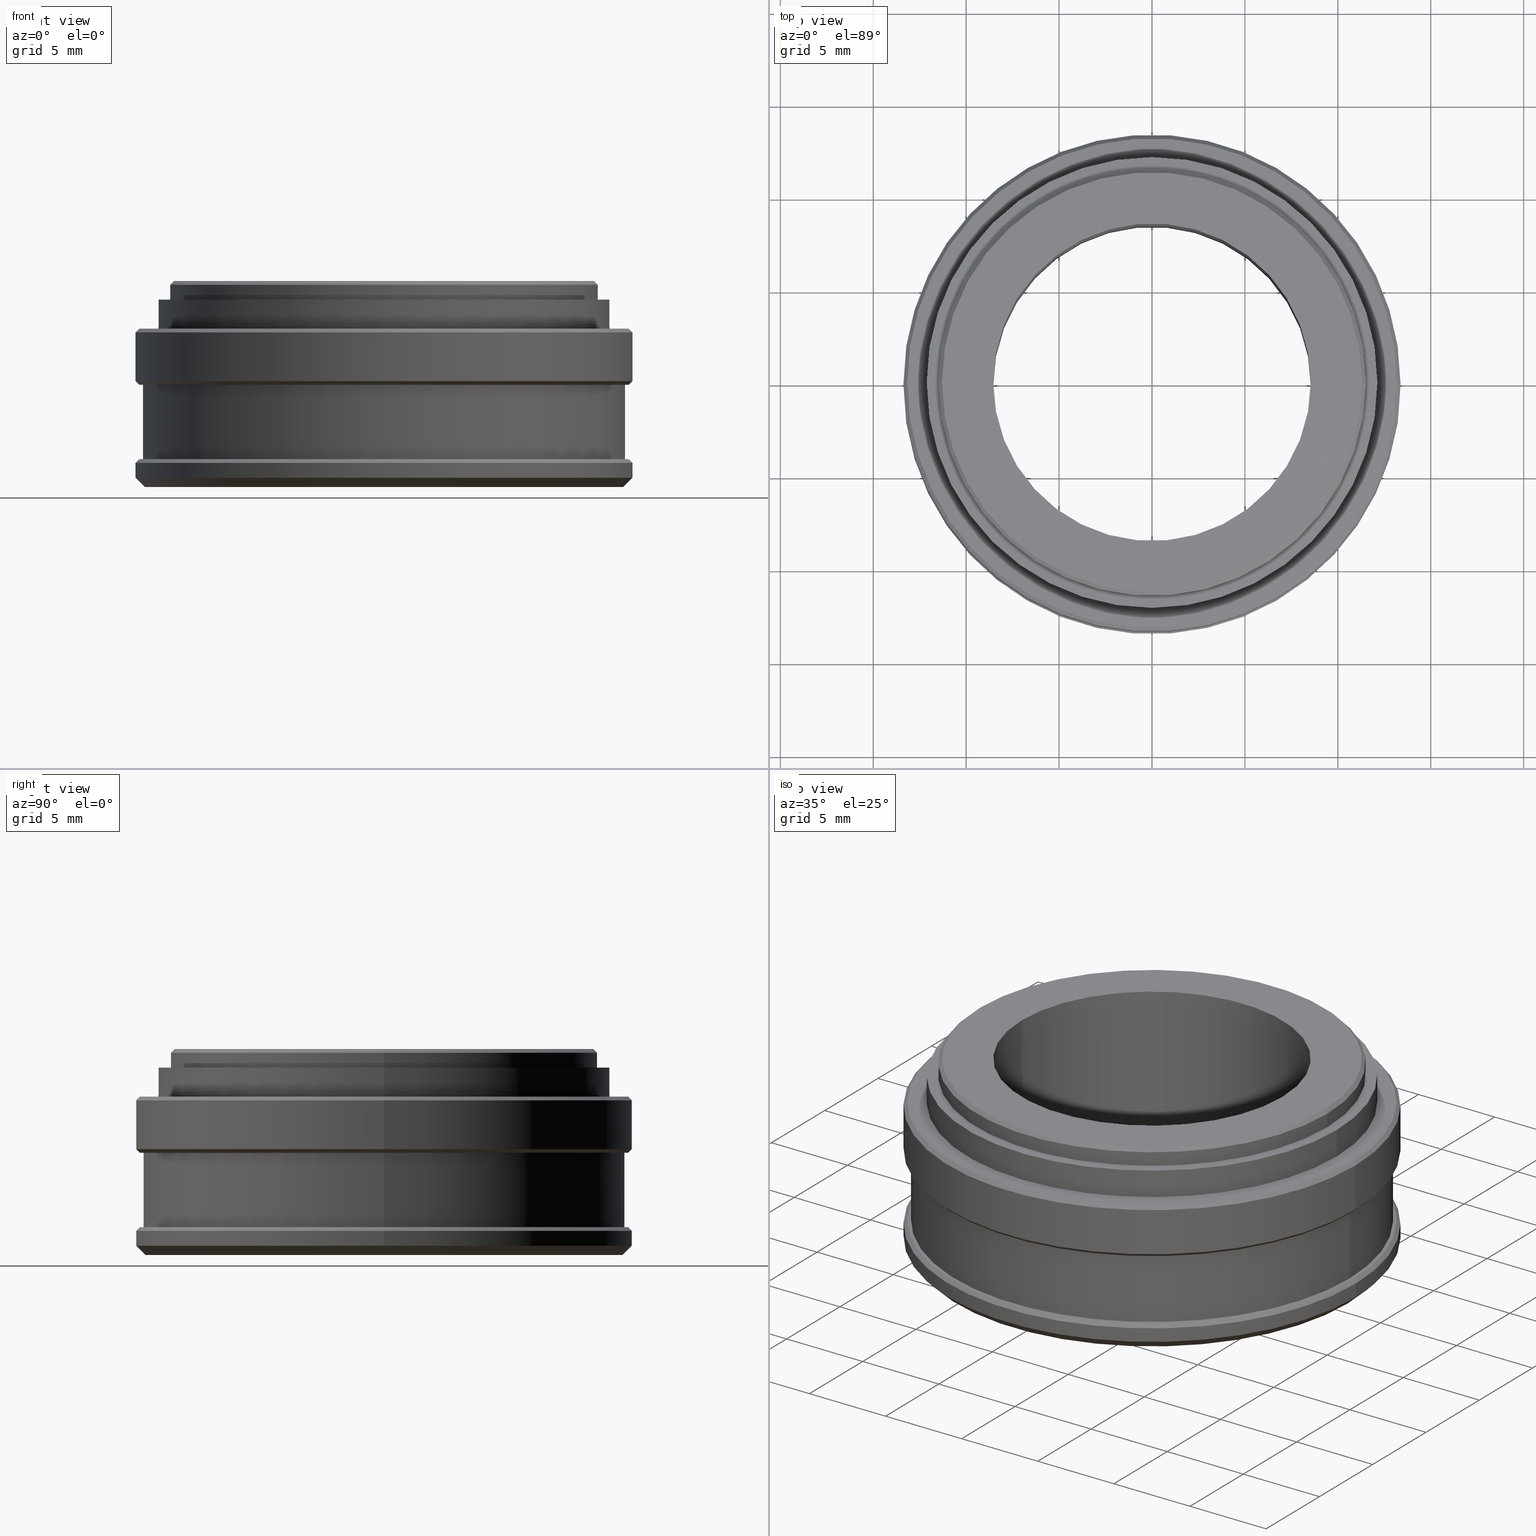
[diagram: canonical four-view strip — front | top / right | iso, engineering-drawing reading convention]
A machine part, canonical four-view strip (front | top / right | iso — engineering-drawing reading convention). The complete STEP part file that produces these views, byte-faithful:
ISO-10303-21;
HEADER;
FILE_DESCRIPTION (( 'STEP AP203' ),
    '1' );
FILE_NAME ('66105.STEP',
    '2018-03-31T08:20:15',
    ( 'User' ),
    ( 'china' ),
    'SwSTEP 2.0',
    'SolidWorks 2015',
    '' );
FILE_SCHEMA (( 'CONFIG_CONTROL_DESIGN' ));
ENDSEC;

DATA;
#1 = VERTEX_POINT ( 'NONE', #37 ) ;
#2 = VECTOR ( 'NONE', #607, 1000.000000000000000 ) ;
#3 = ORIENTED_EDGE ( 'NONE', *, *, #290, .T. ) ;
#4 = ORIENTED_EDGE ( 'NONE', *, *, #796, .F. ) ;
#5 = FACE_OUTER_BOUND ( 'NONE', #645, .T. ) ;
#6 = ORIENTED_EDGE ( 'NONE', *, *, #243, .T. ) ;
#7 = DIRECTION ( 'NONE',  ( 1.000000000000000000, 0.0000000000000000000, -0.0000000000000000000 ) ) ;
#8 = VERTEX_POINT ( 'NONE', #452 ) ;
#9 = VECTOR ( 'NONE', #205, 1000.000000000000100 ) ;
#10 = CONICAL_SURFACE ( 'NONE', #115, 13.17000000000001900, 0.7853981633974526100 ) ;
#11 = ORIENTED_EDGE ( 'NONE', *, *, #230, .T. ) ;
#12 = VERTEX_POINT ( 'NONE', #38 ) ;
#13 = VERTEX_POINT ( 'NONE', #32 ) ;
#14 = DATE_AND_TIME ( #395, #381 ) ;
#15 = VECTOR ( 'NONE', #293, 1000.000000000000000 ) ;
#16 = CIRCLE ( 'NONE', #150, 12.86999999999999700 ) ;
#17 = ORIENTED_EDGE ( 'NONE', *, *, #422, .F. ) ;
#18 = CIRCLE ( 'NONE', #200, 13.36999999999999900 ) ;
#19 = EDGE_LOOP ( 'NONE', ( #690, #776 ) ) ;
#20 = ORIENTED_EDGE ( 'NONE', *, *, #229, .F. ) ;
#21 = ORIENTED_EDGE ( 'NONE', *, *, #247, .T. ) ;
#22 = VERTEX_POINT ( 'NONE', #180 ) ;
#23 = EDGE_CURVE ( 'NONE', #13, #555, #472, .T. ) ;
#24 = CIRCLE ( 'NONE', #462, 11.50000000000000000 ) ;
#25 = FACE_OUTER_BOUND ( 'NONE', #208, .T. ) ;
#26 = PERSON_AND_ORGANIZATION_ROLE ( 'design_owner' ) ;
#27 = ORIENTED_EDGE ( 'NONE', *, *, #315, .F. ) ;
#28 = APPLICATION_CONTEXT ( 'configuration controlled 3d designs of mechanical parts and assemblies' ) ;
#29 = CC_DESIGN_SECURITY_CLASSIFICATION ( #56, ( #64 ) ) ;
#30 = APPLICATION_PROTOCOL_DEFINITION ( 'international standard', 'config_control_design', 1994, #28 ) ;
#31 = APPROVAL_STATUS ( 'not_yet_approved' ) ;
#32 = CARTESIAN_POINT ( 'NONE',  ( 12.97000000000000200, 1.588366898494117400E-015, 5.500000000000000000 ) ) ;
#33 = ORIENTED_EDGE ( 'NONE', *, *, #658, .F. ) ;
#34 = DESIGN_CONTEXT ( 'detailed design', #28, 'design' ) ;
#35 = APPROVAL_ROLE ( '' ) ;
#36 = PRODUCT_RELATED_PRODUCT_CATEGORY ( 'detail', '', ( #314 ) ) ;
#37 = CARTESIAN_POINT ( 'NONE',  ( 8.543975016016954500, 1.046335165536011900E-015, 11.08400000000000000 ) ) ;
#38 = CARTESIAN_POINT ( 'NONE',  ( 13.17000000000001900, 1.625106302468538600E-015, 8.519999999999999600 ) ) ;
#39 = CC_DESIGN_APPROVAL ( #49, ( #56 ) ) ;
#40 = PERSON_AND_ORGANIZATION_ROLE ( 'creator' ) ;
#41 = CC_DESIGN_DATE_AND_TIME_ASSIGNMENT ( #780, #69, ( #56 ) ) ;
#42 = DIRECTION ( 'NONE',  ( -1.000000000000000000, 0.0000000000000000000, 0.0000000000000000000 ) ) ;
#43 = CIRCLE ( 'NONE', #474, 8.543975016016954500 ) ;
#44 = DATE_TIME_ROLE ( 'creation_date' ) ;
#45 = APPROVAL_STATUS ( 'not_yet_approved' ) ;
#46 = ADVANCED_FACE ( 'NONE', ( #618 ), #619, .T. ) ;
#47 = APPROVAL_ROLE ( '' ) ;
#48 = COORDINATED_UNIVERSAL_TIME_OFFSET ( 8, 0, .AHEAD. ) ;
#49 = APPROVAL ( #67, 'δָ��' ) ;
#50 = CIRCLE ( 'NONE', #529, 11.30000000000000400 ) ;
#51 = PERSON_AND_ORGANIZATION_ROLE ( 'creator' ) ;
#52 = CC_DESIGN_PERSON_AND_ORGANIZATION_ASSIGNMENT ( #154, #71, ( #56 ) ) ;
#53 = ORIENTED_EDGE ( 'NONE', *, *, #262, .F. ) ;
#54 = CC_DESIGN_PERSON_AND_ORGANIZATION_ASSIGNMENT ( #419, #74, ( #64 ) ) ;
#55 = ADVANCED_FACE ( 'NONE', ( #723, #25 ), #209, .T. ) ;
#56 = SECURITY_CLASSIFICATION ( '', '', #73 ) ;
#57 = ORIENTED_EDGE ( 'NONE', *, *, #301, .F. ) ;
#58 = CC_DESIGN_PERSON_AND_ORGANIZATION_ASSIGNMENT ( #469, #51, ( #64 ) ) ;
#59 = EDGE_CURVE ( 'NONE', #22, #1, #581, .T. ) ;
#60 = CYLINDRICAL_SURFACE ( 'NONE', #360, 11.50000000000000000 ) ;
#61 = APPROVAL ( #45, 'δָ��' ) ;
#62 = LINE ( 'NONE', #556, #446 ) ;
#63 = CC_DESIGN_APPROVAL ( #61, ( #64 ) ) ;
#64 = PRODUCT_DEFINITION_FORMATION_WITH_SPECIFIED_SOURCE ( '�κ�', '', #314, .NOT_KNOWN. ) ;
#65 = EDGE_LOOP ( 'NONE', ( #513, #3, #57, #538 ) ) ;
#66 = APPROVAL_ROLE ( '' ) ;
#67 = APPROVAL_STATUS ( 'not_yet_approved' ) ;
#68 = EDGE_CURVE ( 'NONE', #12, #108, #317, .T. ) ;
#69 = DATE_TIME_ROLE ( 'classification_date' ) ;
#70 = CONICAL_SURFACE ( 'NONE', #131, 13.36999999999999900, 0.7853981633974500600 ) ;
#71 = PERSON_AND_ORGANIZATION_ROLE ( 'classification_officer' ) ;
#72 = AXIS2_PLACEMENT_3D ( 'NONE', #806, #801, #785 ) ;
#73 = SECURITY_CLASSIFICATION_LEVEL ( 'unclassified' ) ;
#74 = PERSON_AND_ORGANIZATION_ROLE ( 'design_supplier' ) ;
#75 = CC_DESIGN_PERSON_AND_ORGANIZATION_ASSIGNMENT ( #84, #40, ( #83 ) ) ;
#76 = ORIENTED_EDGE ( 'NONE', *, *, #304, .F. ) ;
#77 = CC_DESIGN_DATE_AND_TIME_ASSIGNMENT ( #616, #44, ( #83 ) ) ;
#78 = EDGE_CURVE ( 'NONE', #435, #104, #202, .T. ) ;
#79 = CC_DESIGN_APPROVAL ( #87, ( #83 ) ) ;
#80 = CARTESIAN_POINT ( 'NONE',  ( 0.0000000000000000000, 0.0000000000000000000, 8.519999999999999600 ) ) ;
#81 = DIRECTION ( 'NONE',  ( 0.0000000000000000000, 0.0000000000000000000, 1.000000000000000000 ) ) ;
#82 = DIRECTION ( 'NONE',  ( 1.000000000000000000, 0.0000000000000000000, 0.0000000000000000000 ) ) ;
#83 = PRODUCT_DEFINITION ( 'δ֪', '', #64, #34 ) ;
#84 = PERSON_AND_ORGANIZATION ( #570, #668 ) ;
#85 = DIRECTION ( 'NONE',  ( -1.000000000000000000, 0.0000000000000000000, 0.0000000000000000000 ) ) ;
#86 = LINE ( 'NONE', #592, #569 ) ;
#87 = APPROVAL ( #31, 'δָ��' ) ;
#88 = CARTESIAN_POINT ( 'NONE',  ( 0.0000000000000000000, 0.0000000000000000000, 5.500000000000000000 ) ) ;
#89 = APPROVAL_PERSON_ORGANIZATION ( #426, #61, #47 ) ;
#90 = CARTESIAN_POINT ( 'NONE',  ( 13.17000000000000200, 1.625106302468537800E-015, 1.500000000000000000 ) ) ;
#91 = PLANE ( 'NONE',  #128 ) ;
#92 = CC_DESIGN_PERSON_AND_ORGANIZATION_ASSIGNMENT ( #693, #26, ( #314 ) ) ;
#93 = CARTESIAN_POINT ( 'NONE',  ( 11.30000000000000400, 1.383850883036509700E-015, 11.08400000000000000 ) ) ;
#94 = CARTESIAN_POINT ( 'NONE',  ( -13.36999999999999900, 0.0000000000000000000, 0.5000000000000004400 ) ) ;
#95 = CARTESIAN_POINT ( 'NONE',  ( 0.0000000000000000000, 0.0000000000000000000, 1.500000000000000000 ) ) ;
#96 = DIRECTION ( 'NONE',  ( 0.0000000000000000000, 0.0000000000000000000, 1.000000000000000000 ) ) ;
#97 = DIRECTION ( 'NONE',  ( 1.000000000000000000, 0.0000000000000000000, 0.0000000000000000000 ) ) ;
#98 = DIRECTION ( 'NONE',  ( 0.0000000000000000000, 0.0000000000000000000, 1.000000000000000000 ) ) ;
#99 = FACE_OUTER_BOUND ( 'NONE', #332, .T. ) ;
#100 = DIRECTION ( 'NONE',  ( 1.000000000000000000, 0.0000000000000000000, 0.0000000000000000000 ) ) ;
#101 = DIRECTION ( 'NONE',  ( 1.000000000000000000, 0.0000000000000000000, -0.0000000000000000000 ) ) ;
#102 = AXIS2_PLACEMENT_3D ( 'NONE', #444, #443, #455 ) ;
#103 = CARTESIAN_POINT ( 'NONE',  ( 0.0000000000000000000, 0.0000000000000000000, 8.519999999999999600 ) ) ;
#104 = VERTEX_POINT ( 'NONE', #411 ) ;
#105 = DIRECTION ( 'NONE',  ( -0.0000000000000000000, -0.0000000000000000000, -1.000000000000000000 ) ) ;
#106 =( GEOMETRIC_REPRESENTATION_CONTEXT ( 3 ) GLOBAL_UNCERTAINTY_ASSIGNED_CONTEXT ( ( #739 ) ) GLOBAL_UNIT_ASSIGNED_CONTEXT ( ( #438, #451, #799 ) ) REPRESENTATION_CONTEXT ( 'NONE', 'WORKASPACE' ) );
#107 = AXIS2_PLACEMENT_3D ( 'NONE', #396, #398, #393 ) ;
#108 = VERTEX_POINT ( 'NONE', #283 ) ;
#109 = AXIS2_PLACEMENT_3D ( 'NONE', #437, #441, #436 ) ;
#110 = EDGE_LOOP ( 'NONE', ( #196, #466, #164, #242 ) ) ;
#111 = CIRCLE ( 'NONE', #144, 13.17000000000001900 ) ;
#112 = AXIS2_PLACEMENT_3D ( 'NONE', #430, #433, #392 ) ;
#113 = AXIS2_PLACEMENT_3D ( 'NONE', #400, #402, #403 ) ;
#114 = AXIS2_PLACEMENT_3D ( 'NONE', #382, #577, #384 ) ;
#115 = AXIS2_PLACEMENT_3D ( 'NONE', #389, #386, #385 ) ;
#116 = AXIS2_PLACEMENT_3D ( 'NONE', #525, #565, #568 ) ;
#117 = CIRCLE ( 'NONE', #485, 13.36999999999999900 ) ;
#118 = AXIS2_PLACEMENT_3D ( 'NONE', #559, #571, #575 ) ;
#119 = FACE_OUTER_BOUND ( 'NONE', #110, .T. ) ;
#120 = AXIS2_PLACEMENT_3D ( 'NONE', #562, #563, #564 ) ;
#121 = ORIENTED_EDGE ( 'NONE', *, *, #420, .F. ) ;
#122 = ADVANCED_FACE ( 'NONE', ( #763, #204 ), #159, .T. ) ;
#123 = AXIS2_PLACEMENT_3D ( 'NONE', #508, #501, #498 ) ;
#124 = AXIS2_PLACEMENT_3D ( 'NONE', #519, #512, #517 ) ;
#125 = AXIS2_PLACEMENT_3D ( 'NONE', #103, #185, #85 ) ;
#126 = APPROVAL_DATE_TIME ( #14, #87 ) ;
#127 = APPROVAL_DATE_TIME ( #323, #61 ) ;
#128 = AXIS2_PLACEMENT_3D ( 'NONE', #88, #98, #101 ) ;
#129 = ADVANCED_FACE ( 'NONE', ( #415 ), #211, .T. ) ;
#130 = EDGE_CURVE ( 'NONE', #729, #435, #521, .T. ) ;
#131 = AXIS2_PLACEMENT_3D ( 'NONE', #520, #428, #518 ) ;
#132 = ORIENTED_EDGE ( 'NONE', *, *, #663, .F. ) ;
#133 = LOCAL_TIME ( 16, 20, 15.00000000000000000, #256 ) ;
#134 = AXIS2_PLACEMENT_3D ( 'NONE', #448, #434, #397 ) ;
#135 = CALENDAR_DATE ( 2018, 31, 3 ) ;
#136 = AXIS2_PLACEMENT_3D ( 'NONE', #95, #96, #97 ) ;
#137 = ORIENTED_EDGE ( 'NONE', *, *, #195, .T. ) ;
#138 = EDGE_LOOP ( 'NONE', ( #250, #296, #794, #139 ) ) ;
#139 = ORIENTED_EDGE ( 'NONE', *, *, #269, .F. ) ;
#140 = AXIS2_PLACEMENT_3D ( 'NONE', #183, #188, #182 ) ;
#141 = ORIENTED_EDGE ( 'NONE', *, *, #68, .T. ) ;
#142 = AXIS2_PLACEMENT_3D ( 'NONE', #178, #176, #179 ) ;
#143 = AXIS2_PLACEMENT_3D ( 'NONE', #80, #81, #82 ) ;
#144 = AXIS2_PLACEMENT_3D ( 'NONE', #165, #166, #167 ) ;
#145 = ORIENTED_EDGE ( 'NONE', *, *, #507, .T. ) ;
#146 = FACE_OUTER_BOUND ( 'NONE', #503, .T. ) ;
#147 = CONICAL_SURFACE ( 'NONE', #118, 13.36999999999999900, 0.7853981633974500600 ) ;
#148 = VERTEX_POINT ( 'NONE', #280 ) ;
#149 = AXIS2_PLACEMENT_3D ( 'NONE', #771, #811, #809 ) ;
#150 = AXIS2_PLACEMENT_3D ( 'NONE', #510, #105, #100 ) ;
#151 = CYLINDRICAL_SURFACE ( 'NONE', #524, 12.12400000000000200 ) ;
#152 = ORIENTED_EDGE ( 'NONE', *, *, #266, .T. ) ;
#153 = EDGE_LOOP ( 'NONE', ( #666, #141, #551, #457 ) ) ;
#154 = PERSON_AND_ORGANIZATION ( #570, #668 ) ;
#155 = AXIS2_PLACEMENT_3D ( 'NONE', #721, #719, #718 ) ;
#156 = CIRCLE ( 'NONE', #488, 13.16999999999997700 ) ;
#157 = AXIS2_PLACEMENT_3D ( 'NONE', #598, #578, #605 ) ;
#158 = LINE ( 'NONE', #697, #267 ) ;
#159 = PLANE ( 'NONE',  #421 ) ;
#160 = AXIS2_PLACEMENT_3D ( 'NONE', #318, #191, #414 ) ;
#161 = EDGE_LOOP ( 'NONE', ( #669, #664, #724, #121 ) ) ;
#162 = CIRCLE ( 'NONE', #467, 13.36999999999999900 ) ;
#163 = DIRECTION ( 'NONE',  ( -1.000000000000000000, 0.0000000000000000000, 0.0000000000000000000 ) ) ;
#164 = ORIENTED_EDGE ( 'NONE', *, *, #286, .T. ) ;
#165 = CARTESIAN_POINT ( 'NONE',  ( 0.0000000000000000000, 0.0000000000000000000, 8.519999999999999600 ) ) ;
#166 = DIRECTION ( 'NONE',  ( 0.0000000000000000000, 0.0000000000000000000, 1.000000000000000000 ) ) ;
#167 = DIRECTION ( 'NONE',  ( 1.000000000000000000, 0.0000000000000000000, 0.0000000000000000000 ) ) ;
#168 = VERTEX_POINT ( 'NONE', #363 ) ;
#169 = CONICAL_SURFACE ( 'NONE', #114, 11.30000000000000400, 0.7853981633974569400 ) ;
#170 = DIRECTION ( 'NONE',  ( -0.0000000000000000000, -0.0000000000000000000, -1.000000000000000000 ) ) ;
#171 = AXIS2_PLACEMENT_3D ( 'NONE', #735, #483, #463 ) ;
#172 = FACE_BOUND ( 'NONE', #173, .T. ) ;
#173 = EDGE_LOOP ( 'NONE', ( #792, #502 ) ) ;
#174 = VECTOR ( 'NONE', #330, 1000.000000000000100 ) ;
#175 = AXIS2_PLACEMENT_3D ( 'NONE', #303, #295, #405 ) ;
#176 = DIRECTION ( 'NONE',  ( 0.0000000000000000000, 0.0000000000000000000, -1.000000000000000000 ) ) ;
#177 = ADVANCED_FACE ( 'NONE', ( #302 ), #311, .T. ) ;
#178 = CARTESIAN_POINT ( 'NONE',  ( 0.0000000000000000000, 0.0000000000000000000, 11.08400000000000000 ) ) ;
#179 = DIRECTION ( 'NONE',  ( -1.000000000000000000, 0.0000000000000000000, 0.0000000000000000000 ) ) ;
#180 = CARTESIAN_POINT ( 'NONE',  ( -8.543975016016954500, 0.0000000000000000000, 11.08400000000000000 ) ) ;
#181 = CIRCLE ( 'NONE', #478, 12.12400000000000200 ) ;
#182 = DIRECTION ( 'NONE',  ( -1.000000000000000000, 0.0000000000000000000, 0.0000000000000000000 ) ) ;
#183 = CARTESIAN_POINT ( 'NONE',  ( 0.0000000000000000000, 0.0000000000000000000, 11.08400000000000000 ) ) ;
#184 = ADVANCED_FACE ( 'NONE', ( #5 ), #769, .T. ) ;
#185 = DIRECTION ( 'NONE',  ( -0.0000000000000000000, -0.0000000000000000000, -1.000000000000000000 ) ) ;
#186 = LINE ( 'NONE', #539, #174 ) ;
#187 = FACE_OUTER_BOUND ( 'NONE', #368, .T. ) ;
#188 = DIRECTION ( 'NONE',  ( -0.0000000000000000000, -0.0000000000000000000, -1.000000000000000000 ) ) ;
#189 = DIRECTION ( 'NONE',  ( 0.7071067811865536800, 8.659560562355008000E-017, -0.7071067811865414700 ) ) ;
#190 = AXIS2_PLACEMENT_3D ( 'NONE', #226, #536, #534 ) ;
#191 = DIRECTION ( 'NONE',  ( 0.0000000000000000000, 0.0000000000000000000, 1.000000000000000000 ) ) ;
#192 = EDGE_LOOP ( 'NONE', ( #33, #53 ) ) ;
#193 = ORIENTED_EDGE ( 'NONE', *, *, #241, .T. ) ;
#194 = VERTEX_POINT ( 'NONE', #326 ) ;
#195 = EDGE_CURVE ( 'NONE', #649, #566, #18, .T. ) ;
#196 = ORIENTED_EDGE ( 'NONE', *, *, #266, .F. ) ;
#197 = FACE_OUTER_BOUND ( 'NONE', #373, .T. ) ;
#198 = ORIENTED_EDGE ( 'NONE', *, *, #299, .T. ) ;
#199 = EDGE_LOOP ( 'NONE', ( #557, #308, #324, #265 ) ) ;
#200 = AXIS2_PLACEMENT_3D ( 'NONE', #494, #300, #257 ) ;
#201 = DIRECTION ( 'NONE',  ( -0.0000000000000000000, -0.0000000000000000000, -1.000000000000000000 ) ) ;
#202 = CIRCLE ( 'NONE', #338, 11.50000000000000000 ) ;
#203 = AXIS2_PLACEMENT_3D ( 'NONE', #573, #567, #42 ) ;
#204 = FACE_BOUND ( 'NONE', #192, .T. ) ;
#205 = DIRECTION ( 'NONE',  ( 0.7071067811865506800, 8.659560562354969800E-017, -0.7071067811865443500 ) ) ;
#206 = AXIS2_PLACEMENT_3D ( 'NONE', #588, #589, #590 ) ;
#207 = EDGE_LOOP ( 'NONE', ( #20, #306, #375, #27 ) ) ;
#208 = EDGE_LOOP ( 'NONE', ( #352, #793 ) ) ;
#209 = PLANE ( 'NONE',  #558 ) ;
#210 = ORIENTED_EDGE ( 'NONE', *, *, #253, .F. ) ;
#211 = CYLINDRICAL_SURFACE ( 'NONE', #175, 12.12400000000000200 ) ;
#212 = ADVANCED_FACE ( 'NONE', ( #344 ), #672, .F. ) ;
#213 = CONICAL_SURFACE ( 'NONE', #112, 13.36999999999999900, 0.7853981633974482800 ) ;
#214 = ORIENTED_EDGE ( 'NONE', *, *, #255, .T. ) ;
#215 = CIRCLE ( 'NONE', #190, 8.543975016016954500 ) ;
#216 = ADVANCED_FACE ( 'NONE', ( #119 ), #60, .T. ) ;
#217 = ORIENTED_EDGE ( 'NONE', *, *, #279, .F. ) ;
#218 = DIRECTION ( 'NONE',  ( 0.0000000000000000000, 0.0000000000000000000, -1.000000000000000000 ) ) ;
#219 = CIRCLE ( 'NONE', #134, 12.97000000000000200 ) ;
#220 = LINE ( 'NONE', #709, #260 ) ;
#221 = FACE_OUTER_BOUND ( 'NONE', #416, .T. ) ;
#222 = VERTEX_POINT ( 'NONE', #535 ) ;
#223 = ORIENTED_EDGE ( 'NONE', *, *, #195, .F. ) ;
#224 = VECTOR ( 'NONE', #608, 1000.000000000000000 ) ;
#225 = CONICAL_SURFACE ( 'NONE', #109, 13.36999999999999900, 0.7853981633974482800 ) ;
#226 = CARTESIAN_POINT ( 'NONE',  ( 0.0000000000000000000, 0.0000000000000000000, 0.0000000000000000000 ) ) ;
#227 = ORIENTED_EDGE ( 'NONE', *, *, #281, .F. ) ;
#228 = DIRECTION ( 'NONE',  ( -0.0000000000000000000, -0.0000000000000000000, -1.000000000000000000 ) ) ;
#229 = EDGE_CURVE ( 'NONE', #643, #623, #736, .T. ) ;
#230 = EDGE_CURVE ( 'NONE', #698, #795, #215, .T. ) ;
#231 = EDGE_CURVE ( 'NONE', #505, #566, #812, .T. ) ;
#232 = ORIENTED_EDGE ( 'NONE', *, *, #658, .T. ) ;
#233 = CIRCLE ( 'NONE', #475, 12.12400000000000200 ) ;
#234 = DIRECTION ( 'NONE',  ( 0.0000000000000000000, 0.0000000000000000000, 1.000000000000000000 ) ) ;
#235 = ORIENTED_EDGE ( 'NONE', *, *, #447, .F. ) ;
#236 = EDGE_LOOP ( 'NONE', ( #732, #214, #442, #516 ) ) ;
#237 = CIRCLE ( 'NONE', #143, 13.17000000000001900 ) ;
#238 = EDGE_CURVE ( 'NONE', #1, #698, #62, .T. ) ;
#239 = EDGE_CURVE ( 'NONE', #305, #194, #533, .T. ) ;
#240 = EDGE_CURVE ( 'NONE', #22, #795, #477, .T. ) ;
#241 = EDGE_CURVE ( 'NONE', #738, #222, #620, .T. ) ;
#242 = ORIENTED_EDGE ( 'NONE', *, *, #253, .T. ) ;
#243 = EDGE_CURVE ( 'NONE', #649, #540, #783, .T. ) ;
#244 = ORIENTED_EDGE ( 'NONE', *, *, #301, .T. ) ;
#245 = EDGE_CURVE ( 'NONE', #566, #649, #162, .T. ) ;
#246 = EDGE_LOOP ( 'NONE', ( #145, #591 ) ) ;
#247 = EDGE_CURVE ( 'NONE', #795, #698, #43, .T. ) ;
#248 = EDGE_CURVE ( 'NONE', #550, #628, #372, .T. ) ;
#249 = EDGE_CURVE ( 'NONE', #334, #649, #648, .T. ) ;
#250 = ORIENTED_EDGE ( 'NONE', *, *, #255, .F. ) ;
#251 = EDGE_LOOP ( 'NONE', ( #493, #17, #817, #132 ) ) ;
#252 = ORIENTED_EDGE ( 'NONE', *, *, #307, .F. ) ;
#253 = EDGE_CURVE ( 'NONE', #407, #781, #24, .T. ) ;
#254 = EDGE_CURVE ( 'NONE', #781, #407, #320, .T. ) ;
#255 = EDGE_CURVE ( 'NONE', #222, #628, #86, .T. ) ;
#256 = COORDINATED_UNIVERSAL_TIME_OFFSET ( 8, 0, .AHEAD. ) ;
#257 = DIRECTION ( 'NONE',  ( 1.000000000000000000, 0.0000000000000000000, 0.0000000000000000000 ) ) ;
#258 = FACE_OUTER_BOUND ( 'NONE', #199, .T. ) ;
#259 = DIRECTION ( 'NONE',  ( -0.0000000000000000000, -0.0000000000000000000, -1.000000000000000000 ) ) ;
#260 = VECTOR ( 'NONE', #748, 1000.000000000000000 ) ;
#261 = EDGE_LOOP ( 'NONE', ( #210, #760 ) ) ;
#262 = EDGE_CURVE ( 'NONE', #325, #168, #784, .T. ) ;
#263 = DIRECTION ( 'NONE',  ( -0.0000000000000000000, -0.0000000000000000000, -1.000000000000000000 ) ) ;
#264 = EDGE_CURVE ( 'NONE', #566, #194, #476, .T. ) ;
#265 = ORIENTED_EDGE ( 'NONE', *, *, #278, .F. ) ;
#266 = EDGE_CURVE ( 'NONE', #104, #781, #798, .T. ) ;
#267 = VECTOR ( 'NONE', #699, 1000.000000000000000 ) ;
#268 = CARTESIAN_POINT ( 'NONE',  ( 0.0000000000000000000, 0.0000000000000000000, 5.500000000000000000 ) ) ;
#269 = EDGE_CURVE ( 'NONE', #628, #550, #646, .T. ) ;
#270 = APPROVAL_PERSON_ORGANIZATION ( #406, #87, #35 ) ;
#271 = EDGE_CURVE ( 'NONE', #313, #148, #233, .T. ) ;
#272 = DIRECTION ( 'NONE',  ( -1.000000000000000000, 0.0000000000000000000, 0.0000000000000000000 ) ) ;
#273 = EDGE_CURVE ( 'NONE', #148, #313, #181, .T. ) ;
#274 = CARTESIAN_POINT ( 'NONE',  ( 0.0000000000000000000, 0.0000000000000000000, 1.500000000000000000 ) ) ;
#275 = EDGE_CURVE ( 'NONE', #729, #346, #797, .T. ) ;
#276 = EDGE_LOOP ( 'NONE', ( #321, #708, #6, #777 ) ) ;
#277 = DIRECTION ( 'NONE',  ( -0.0000000000000000000, -0.0000000000000000000, -1.000000000000000000 ) ) ;
#278 = EDGE_CURVE ( 'NONE', #108, #8, #117, .T. ) ;
#279 = EDGE_CURVE ( 'NONE', #104, #435, #349, .T. ) ;
#280 = CARTESIAN_POINT ( 'NONE',  ( -12.12400000000000200, 0.0000000000000000000, 8.519999999999999600 ) ) ;
#281 = EDGE_CURVE ( 'NONE', #555, #168, #657, .T. ) ;
#282 = ADVANCED_FACE ( 'NONE', ( #99 ), #634, .T. ) ;
#283 = CARTESIAN_POINT ( 'NONE',  ( 13.36999999999999900, 1.637352770460010800E-015, 8.320000000000021600 ) ) ;
#284 = ORIENTED_EDGE ( 'NONE', *, *, #273, .F. ) ;
#285 = CARTESIAN_POINT ( 'NONE',  ( -13.36999999999999900, 0.0000000000000000000, 8.519999999999999600 ) ) ;
#286 = EDGE_CURVE ( 'NONE', #435, #407, #731, .T. ) ;
#287 = CARTESIAN_POINT ( 'NONE',  ( 0.0000000000000000000, 0.0000000000000000000, 5.700000000000022400 ) ) ;
#288 = DIRECTION ( 'NONE',  ( -1.000000000000000000, 0.0000000000000000000, 0.0000000000000000000 ) ) ;
#289 = ADVANCED_FACE ( 'NONE', ( #146 ), #802, .T. ) ;
#290 = EDGE_CURVE ( 'NONE', #674, #540, #158, .T. ) ;
#291 = FACE_OUTER_BOUND ( 'NONE', #370, .T. ) ;
#292 = EDGE_CURVE ( 'NONE', #623, #643, #484, .T. ) ;
#293 = DIRECTION ( 'NONE',  ( -0.7071067811865536800, 0.0000000000000000000, -0.7071067811865414700 ) ) ;
#294 = ORIENTED_EDGE ( 'NONE', *, *, #427, .T. ) ;
#295 = DIRECTION ( 'NONE',  ( -0.0000000000000000000, -0.0000000000000000000, -1.000000000000000000 ) ) ;
#296 = ORIENTED_EDGE ( 'NONE', *, *, #241, .F. ) ;
#297 = CARTESIAN_POINT ( 'NONE',  ( 13.17000000000000200, 1.612859834477064300E-015, 1.500000000000000000 ) ) ;
#298 = MANIFOLD_SOLID_BREP ( '�г�-����1', #661 ) ;
#299 = EDGE_CURVE ( 'NONE', #222, #738, #156, .T. ) ;
#300 = DIRECTION ( 'NONE',  ( 0.0000000000000000000, 0.0000000000000000000, -1.000000000000000000 ) ) ;
#301 = EDGE_CURVE ( 'NONE', #194, #540, #531, .T. ) ;
#302 = FACE_OUTER_BOUND ( 'NONE', #153, .T. ) ;
#303 = CARTESIAN_POINT ( 'NONE',  ( 0.0000000000000000000, 0.0000000000000000000, 10.08400000000000000 ) ) ;
#304 = EDGE_CURVE ( 'NONE', #643, #313, #316, .T. ) ;
#305 = VERTEX_POINT ( 'NONE', #678 ) ;
#306 = ORIENTED_EDGE ( 'NONE', *, *, #304, .T. ) ;
#307 = EDGE_CURVE ( 'NONE', #1, #22, #700, .T. ) ;
#308 = ORIENTED_EDGE ( 'NONE', *, *, #458, .F. ) ;
#309 = ORIENTED_EDGE ( 'NONE', *, *, #240, .F. ) ;
#310 = ORIENTED_EDGE ( 'NONE', *, *, #269, .T. ) ;
#311 = CONICAL_SURFACE ( 'NONE', #665, 13.17000000000001900, 0.7853981633974526100 ) ;
#312 = FACE_OUTER_BOUND ( 'NONE', #717, .T. ) ;
#313 = VERTEX_POINT ( 'NONE', #679 ) ;
#314 = PRODUCT ( '66105', '66105', '', ( #456 ) ) ;
#315 = EDGE_CURVE ( 'NONE', #623, #148, #220, .T. ) ;
#316 = LINE ( 'NONE', #703, #388 ) ;
#317 = LINE ( 'NONE', #409, #9 ) ;
#318 = CARTESIAN_POINT ( 'NONE',  ( 0.0000000000000000000, 0.0000000000000000000, 11.08400000000000000 ) ) ;
#319 = CARTESIAN_POINT ( 'NONE',  ( 13.36999999999999900, 1.637352770460010800E-015, 8.519999999999999600 ) ) ;
#320 = CIRCLE ( 'NONE', #471, 11.50000000000000000 ) ;
#321 = ORIENTED_EDGE ( 'NONE', *, *, #264, .F. ) ;
#322 = CARTESIAN_POINT ( 'NONE',  ( 0.0000000000000000000, 0.0000000000000000000, 11.08400000000000000 ) ) ;
#323 = DATE_AND_TIME ( #135, #787 ) ;
#324 = ORIENTED_EDGE ( 'NONE', *, *, #410, .T. ) ;
#325 = VERTEX_POINT ( 'NONE', #749 ) ;
#326 = CARTESIAN_POINT ( 'NONE',  ( 13.36999999999999900, 1.637352770460011200E-015, 0.5000000000000004400 ) ) ;
#327 = EDGE_LOOP ( 'NONE', ( #336, #480 ) ) ;
#328 = VERTEX_POINT ( 'NONE', #774 ) ;
#329 = ORIENTED_EDGE ( 'NONE', *, *, #425, .F. ) ;
#330 = DIRECTION ( 'NONE',  ( -0.7071067811865506800, 0.0000000000000000000, -0.7071067811865443500 ) ) ;
#331 = VECTOR ( 'NONE', #814, 1000.000000000000000 ) ;
#332 = EDGE_LOOP ( 'NONE', ( #523, #401, #223, #653 ) ) ;
#333 = CIRCLE ( 'NONE', #136, 13.17000000000000200 ) ;
#334 = VERTEX_POINT ( 'NONE', #752 ) ;
#335 = EDGE_LOOP ( 'NONE', ( #377, #603, #819, #21 ) ) ;
#336 = ORIENTED_EDGE ( 'NONE', *, *, #275, .T. ) ;
#337 = CARTESIAN_POINT ( 'NONE',  ( 0.0000000000000000000, 0.0000000000000000000, 8.519999999999999600 ) ) ;
#338 = AXIS2_PLACEMENT_3D ( 'NONE', #612, #351, #404 ) ;
#339 = DIRECTION ( 'NONE',  ( 1.000000000000000000, 0.0000000000000000000, -0.0000000000000000000 ) ) ;
#340 = ADVANCED_FACE ( 'NONE', ( #722 ), #151, .T. ) ;
#341 = DIRECTION ( 'NONE',  ( -1.000000000000000000, 0.0000000000000000000, 0.0000000000000000000 ) ) ;
#342 = DIRECTION ( 'NONE',  ( -1.000000000000000000, 0.0000000000000000000, 0.0000000000000000000 ) ) ;
#343 = DIRECTION ( 'NONE',  ( -0.0000000000000000000, -0.0000000000000000000, -1.000000000000000000 ) ) ;
#344 = FACE_OUTER_BOUND ( 'NONE', #335, .T. ) ;
#345 = CONICAL_SURFACE ( 'NONE', #142, 11.30000000000000400, 0.7853981633974569400 ) ;
#346 = VERTEX_POINT ( 'NONE', #761 ) ;
#347 = ADVANCED_FACE ( 'NONE', ( #197 ), #755, .T. ) ;
#348 = VECTOR ( 'NONE', #189, 1000.000000000000000 ) ;
#349 = CIRCLE ( 'NONE', #486, 11.50000000000000000 ) ;
#350 = ORIENTED_EDGE ( 'NONE', *, *, #422, .T. ) ;
#351 = DIRECTION ( 'NONE',  ( 0.0000000000000000000, 0.0000000000000000000, -1.000000000000000000 ) ) ;
#352 = ORIENTED_EDGE ( 'NONE', *, *, #292, .T. ) ;
#353 = VECTOR ( 'NONE', #689, 1000.000000000000000 ) ;
#354 = CARTESIAN_POINT ( 'NONE',  ( 0.0000000000000000000, 0.0000000000000000000, 11.08400000000000000 ) ) ;
#355 = ORIENTED_EDGE ( 'NONE', *, *, #292, .F. ) ;
#356 = VECTOR ( 'NONE', #170, 1000.000000000000000 ) ;
#357 = FACE_OUTER_BOUND ( 'NONE', #553, .T. ) ;
#358 = CARTESIAN_POINT ( 'NONE',  ( 0.0000000000000000000, 0.0000000000000000000, 11.08400000000000000 ) ) ;
#359 = ORIENTED_EDGE ( 'NONE', *, *, #247, .F. ) ;
#360 = AXIS2_PLACEMENT_3D ( 'NONE', #322, #343, #341 ) ;
#361 = PRODUCT_DEFINITION_SHAPE ( 'NONE', 'NONE',  #83 ) ;
#362 = EDGE_LOOP ( 'NONE', ( #378, #734, #546, #574 ) ) ;
#363 = CARTESIAN_POINT ( 'NONE',  ( -12.97000000000000200, 0.0000000000000000000, 1.500000000000000000 ) ) ;
#364 = ORIENTED_EDGE ( 'NONE', *, *, #264, .T. ) ;
#365 = DIRECTION ( 'NONE',  ( -1.000000000000000000, 0.0000000000000000000, 0.0000000000000000000 ) ) ;
#366 = EDGE_LOOP ( 'NONE', ( #350, #294 ) ) ;
#367 = CARTESIAN_POINT ( 'NONE',  ( -11.30000000000000400, 0.0000000000000000000, 11.08400000000000000 ) ) ;
#368 = EDGE_LOOP ( 'NONE', ( #193, #198 ) ) ;
#369 = EDGE_CURVE ( 'NONE', #346, #729, #50, .T. ) ;
#370 = EDGE_LOOP ( 'NONE', ( #235, #704, #767, #310 ) ) ;
#371 = DIRECTION ( 'NONE',  ( 0.0000000000000000000, 0.0000000000000000000, -1.000000000000000000 ) ) ;
#372 = CIRCLE ( 'NONE', #470, 13.36999999999999900 ) ;
#373 = EDGE_LOOP ( 'NONE', ( #491, #542, #374, #431 ) ) ;
#374 = ORIENTED_EDGE ( 'NONE', *, *, #249, .T. ) ;
#375 = ORIENTED_EDGE ( 'NONE', *, *, #271, .T. ) ;
#376 = ORIENTED_EDGE ( 'NONE', *, *, #458, .T. ) ;
#377 = ORIENTED_EDGE ( 'NONE', *, *, #238, .F. ) ;
#378 = ORIENTED_EDGE ( 'NONE', *, *, #369, .F. ) ;
#379 = CARTESIAN_POINT ( 'NONE',  ( -11.30000000000000400, 0.0000000000000000000, 11.08400000000000000 ) ) ;
#380 = CARTESIAN_POINT ( 'NONE',  ( 8.543975016016954500, 1.046335165536011900E-015, 0.0000000000000000000 ) ) ;
#381 = LOCAL_TIME ( 16, 20, 15.00000000000000000, #449 ) ;
#382 = CARTESIAN_POINT ( 'NONE',  ( 0.0000000000000000000, 0.0000000000000000000, 11.08400000000000000 ) ) ;
#383 = ADVANCED_FACE ( 'NONE', ( #684, #775 ), #720, .F. ) ;
#384 = DIRECTION ( 'NONE',  ( -1.000000000000000000, 0.0000000000000000000, 0.0000000000000000000 ) ) ;
#385 = DIRECTION ( 'NONE',  ( -1.000000000000000000, 0.0000000000000000000, 0.0000000000000000000 ) ) ;
#386 = DIRECTION ( 'NONE',  ( 0.0000000000000000000, 0.0000000000000000000, -1.000000000000000000 ) ) ;
#387 = CARTESIAN_POINT ( 'NONE',  ( -8.543975016016954500, 0.0000000000000000000, 0.0000000000000000000 ) ) ;
#388 = VECTOR ( 'NONE', #705, 1000.000000000000000 ) ;
#389 = CARTESIAN_POINT ( 'NONE',  ( 0.0000000000000000000, 0.0000000000000000000, 8.519999999999999600 ) ) ;
#390 = ADVANCED_FACE ( 'NONE', ( #172, #726 ), #764, .T. ) ;
#391 = CARTESIAN_POINT ( 'NONE',  ( 11.50000000000000000, 1.408343819019456200E-015, 10.08400000000000000 ) ) ;
#392 = DIRECTION ( 'NONE',  ( 1.000000000000000000, 0.0000000000000000000, 0.0000000000000000000 ) ) ;
#393 = DIRECTION ( 'NONE',  ( -1.000000000000000000, 0.0000000000000000000, 0.0000000000000000000 ) ) ;
#394 = VECTOR ( 'NONE', #587, 1000.000000000000000 ) ;
#395 = CALENDAR_DATE ( 2018, 31, 3 ) ;
#396 = CARTESIAN_POINT ( 'NONE',  ( 0.0000000000000000000, 0.0000000000000000000, 1.500000000000000000 ) ) ;
#397 = DIRECTION ( 'NONE',  ( 1.000000000000000000, 0.0000000000000000000, 0.0000000000000000000 ) ) ;
#398 = DIRECTION ( 'NONE',  ( -0.0000000000000000000, -0.0000000000000000000, -1.000000000000000000 ) ) ;
#399 = CIRCLE ( 'NONE', #157, 13.17000000000000200 ) ;
#400 = CARTESIAN_POINT ( 'NONE',  ( 0.0000000000000000000, 0.0000000000000000000, 5.500000000000000000 ) ) ;
#401 = ORIENTED_EDGE ( 'NONE', *, *, #231, .T. ) ;
#402 = DIRECTION ( 'NONE',  ( 0.0000000000000000000, 0.0000000000000000000, 1.000000000000000000 ) ) ;
#403 = DIRECTION ( 'NONE',  ( 1.000000000000000000, 0.0000000000000000000, 0.0000000000000000000 ) ) ;
#404 = DIRECTION ( 'NONE',  ( 1.000000000000000000, 0.0000000000000000000, 0.0000000000000000000 ) ) ;
#405 = DIRECTION ( 'NONE',  ( -1.000000000000000000, 0.0000000000000000000, 0.0000000000000000000 ) ) ;
#406 = PERSON_AND_ORGANIZATION ( #570, #668 ) ;
#407 = VERTEX_POINT ( 'NONE', #408 ) ;
#408 = CARTESIAN_POINT ( 'NONE',  ( -11.50000000000000000, 0.0000000000000000000, 10.08400000000000000 ) ) ;
#409 = CARTESIAN_POINT ( 'NONE',  ( 13.17000000000001900, 1.612859834477066400E-015, 8.519999999999999600 ) ) ;
#410 = EDGE_CURVE ( 'NONE', #328, #8, #186, .T. ) ;
#411 = CARTESIAN_POINT ( 'NONE',  ( 11.50000000000000000, 1.408343819019456200E-015, 10.88400000000000700 ) ) ;
#412 = EDGE_CURVE ( 'NONE', #505, #334, #399, .T. ) ;
#413 = ORIENTED_EDGE ( 'NONE', *, *, #78, .T. ) ;
#414 = DIRECTION ( 'NONE',  ( 1.000000000000000000, 0.0000000000000000000, -0.0000000000000000000 ) ) ;
#415 = FACE_OUTER_BOUND ( 'NONE', #600, .T. ) ;
#416 = EDGE_LOOP ( 'NONE', ( #252, #815, #11, #309 ) ) ;
#417 = CYLINDRICAL_SURFACE ( 'NONE', #140, 8.543975016016954500 ) ;
#418 = EDGE_CURVE ( 'NONE', #8, #108, #670, .T. ) ;
#419 = PERSON_AND_ORGANIZATION ( #570, #668 ) ;
#420 = EDGE_CURVE ( 'NONE', #8, #628, #584, .T. ) ;
#421 = AXIS2_PLACEMENT_3D ( 'NONE', #274, #234, #339 ) ;
#422 = EDGE_CURVE ( 'NONE', #305, #674, #640, .T. ) ;
#423 = EDGE_LOOP ( 'NONE', ( #359, #696 ) ) ;
#424 = EDGE_CURVE ( 'NONE', #738, #550, #606, .T. ) ;
#425 = EDGE_CURVE ( 'NONE', #13, #325, #754, .T. ) ;
#426 = PERSON_AND_ORGANIZATION ( #570, #668 ) ;
#427 = EDGE_CURVE ( 'NONE', #674, #305, #16, .T. ) ;
#428 = DIRECTION ( 'NONE',  ( -0.0000000000000000000, -0.0000000000000000000, 1.000000000000000000 ) ) ;
#429 = CIRCLE ( 'NONE', #113, 12.97000000000000200 ) ;
#430 = CARTESIAN_POINT ( 'NONE',  ( 0.0000000000000000000, 0.0000000000000000000, 5.700000000000022400 ) ) ;
#431 = ORIENTED_EDGE ( 'NONE', *, *, #245, .F. ) ;
#432 = EDGE_CURVE ( 'NONE', #12, #328, #111, .T. ) ;
#433 = DIRECTION ( 'NONE',  ( -0.0000000000000000000, -0.0000000000000000000, 1.000000000000000000 ) ) ;
#434 = DIRECTION ( 'NONE',  ( 0.0000000000000000000, 0.0000000000000000000, 1.000000000000000000 ) ) ;
#435 = VERTEX_POINT ( 'NONE', #788 ) ;
#436 = DIRECTION ( 'NONE',  ( 1.000000000000000000, 0.0000000000000000000, 0.0000000000000000000 ) ) ;
#437 = CARTESIAN_POINT ( 'NONE',  ( 0.0000000000000000000, 0.0000000000000000000, 5.700000000000022400 ) ) ;
#438 =( LENGTH_UNIT ( ) NAMED_UNIT ( * ) SI_UNIT ( .MILLI., .METRE. ) );
#439 = ORIENTED_EDGE ( 'NONE', *, *, #425, .T. ) ;
#440 = EDGE_CURVE ( 'NONE', #346, #104, #701, .T. ) ;
#441 = DIRECTION ( 'NONE',  ( -0.0000000000000000000, -0.0000000000000000000, 1.000000000000000000 ) ) ;
#442 = ORIENTED_EDGE ( 'NONE', *, *, #248, .F. ) ;
#443 = DIRECTION ( 'NONE',  ( 0.0000000000000000000, 0.0000000000000000000, 1.000000000000000000 ) ) ;
#444 = CARTESIAN_POINT ( 'NONE',  ( 0.0000000000000000000, 0.0000000000000000000, 0.0000000000000000000 ) ) ;
#445 = AXIS2_PLACEMENT_3D ( 'NONE', #358, #259, #365 ) ;
#446 = VECTOR ( 'NONE', #263, 1000.000000000000000 ) ;
#447 = EDGE_CURVE ( 'NONE', #108, #550, #673, .T. ) ;
#448 = CARTESIAN_POINT ( 'NONE',  ( 0.0000000000000000000, 0.0000000000000000000, 1.500000000000000000 ) ) ;
#449 = COORDINATED_UNIVERSAL_TIME_OFFSET ( 8, 0, .AHEAD. ) ;
#450 = CARTESIAN_POINT ( 'NONE',  ( -12.86999999999999700, 1.606736600481327200E-015, 0.0000000000000000000 ) ) ;
#451 =( NAMED_UNIT ( * ) PLANE_ANGLE_UNIT ( ) SI_UNIT ( $, .RADIAN. ) );
#452 = CARTESIAN_POINT ( 'NONE',  ( -13.36999999999999900, 0.0000000000000000000, 8.320000000000021600 ) ) ;
#453 = APPLICATION_CONTEXT ( 'configuration controlled 3d designs of mechanical parts and assemblies' ) ;
#454 = ADVANCED_FACE ( 'NONE', ( #221 ), #417, .F. ) ;
#455 = DIRECTION ( 'NONE',  ( 1.000000000000000000, 0.0000000000000000000, 0.0000000000000000000 ) ) ;
#456 = MECHANICAL_CONTEXT ( 'NONE', #453, 'mechanical' ) ;
#457 = ORIENTED_EDGE ( 'NONE', *, *, #410, .F. ) ;
#458 = EDGE_CURVE ( 'NONE', #328, #12, #237, .T. ) ;
#459 = ADVANCED_FACE ( 'NONE', ( #357 ), #345, .T. ) ;
#460 = SHAPE_DEFINITION_REPRESENTATION ( #361, #756 ) ;
#461 = CYLINDRICAL_SURFACE ( 'NONE', #107, 13.36999999999999900 ) ;
#462 = AXIS2_PLACEMENT_3D ( 'NONE', #580, #609, #773 ) ;
#463 = DIRECTION ( 'NONE',  ( 1.000000000000000000, 0.0000000000000000000, -0.0000000000000000000 ) ) ;
#464 = LOCAL_TIME ( 16, 20, 15.00000000000000000, #48 ) ;
#465 = FACE_OUTER_BOUND ( 'NONE', #65, .T. ) ;
#466 = ORIENTED_EDGE ( 'NONE', *, *, #279, .T. ) ;
#467 = AXIS2_PLACEMENT_3D ( 'NONE', #593, #594, #595 ) ;
#468 = ORIENTED_EDGE ( 'NONE', *, *, #262, .T. ) ;
#469 = PERSON_AND_ORGANIZATION ( #570, #668 ) ;
#470 = AXIS2_PLACEMENT_3D ( 'NONE', #287, #601, #602 ) ;
#471 = AXIS2_PLACEMENT_3D ( 'NONE', #772, #659, #655 ) ;
#472 = CIRCLE ( 'NONE', #72, 12.97000000000000200 ) ;
#473 = AXIS2_PLACEMENT_3D ( 'NONE', #635, #636, #637 ) ;
#474 = AXIS2_PLACEMENT_3D ( 'NONE', #597, #579, #582 ) ;
#475 = AXIS2_PLACEMENT_3D ( 'NONE', #624, #629, #654 ) ;
#476 = LINE ( 'NONE', #633, #687 ) ;
#477 = LINE ( 'NONE', #622, #224 ) ;
#478 = AXIS2_PLACEMENT_3D ( 'NONE', #651, #652, #626 ) ;
#479 = FACE_OUTER_BOUND ( 'NONE', #161, .T. ) ;
#480 = ORIENTED_EDGE ( 'NONE', *, *, #369, .T. ) ;
#481 = DIRECTION ( 'NONE',  ( 1.000000000000000000, 0.0000000000000000000, 0.0000000000000000000 ) ) ;
#482 = AXIS2_PLACEMENT_3D ( 'NONE', #641, #642, #647 ) ;
#483 = DIRECTION ( 'NONE',  ( 0.0000000000000000000, 0.0000000000000000000, 1.000000000000000000 ) ) ;
#484 = CIRCLE ( 'NONE', #490, 12.12400000000000200 ) ;
#485 = AXIS2_PLACEMENT_3D ( 'NONE', #730, #715, #813 ) ;
#486 = AXIS2_PLACEMENT_3D ( 'NONE', #713, #683, #685 ) ;
#487 = AXIS2_PLACEMENT_3D ( 'NONE', #630, #625, #627 ) ;
#488 = AXIS2_PLACEMENT_3D ( 'NONE', #706, #770, #707 ) ;
#489 = CALENDAR_DATE ( 2018, 31, 3 ) ;
#490 = AXIS2_PLACEMENT_3D ( 'NONE', #675, #681, #710 ) ;
#491 = ORIENTED_EDGE ( 'NONE', *, *, #231, .F. ) ;
#492 = AXIS2_PLACEMENT_3D ( 'NONE', #532, #554, #548 ) ;
#493 = ORIENTED_EDGE ( 'NONE', *, *, #290, .F. ) ;
#494 = CARTESIAN_POINT ( 'NONE',  ( 0.0000000000000000000, 0.0000000000000000000, 1.300000000000002900 ) ) ;
#495 = AXIS2_PLACEMENT_3D ( 'NONE', #712, #686, #688 ) ;
#496 = ORIENTED_EDGE ( 'NONE', *, *, #271, .F. ) ;
#497 = VECTOR ( 'NONE', #549, 1000.000000000000000 ) ;
#498 = DIRECTION ( 'NONE',  ( -1.000000000000000000, 0.0000000000000000000, 0.0000000000000000000 ) ) ;
#499 = AXIS2_PLACEMENT_3D ( 'NONE', #702, #682, #677 ) ;
#500 = VECTOR ( 'NONE', #639, 1000.000000000000000 ) ;
#501 = DIRECTION ( 'NONE',  ( -0.0000000000000000000, -0.0000000000000000000, -1.000000000000000000 ) ) ;
#502 = ORIENTED_EDGE ( 'NONE', *, *, #307, .T. ) ;
#503 = EDGE_LOOP ( 'NONE', ( #611, #439, #468, #227 ) ) ;
#504 = AXIS2_PLACEMENT_3D ( 'NONE', #743, #744, #745 ) ;
#505 = VERTEX_POINT ( 'NONE', #90 ) ;
#506 = AXIS2_PLACEMENT_3D ( 'NONE', #694, #750, #692 ) ;
#507 = EDGE_CURVE ( 'NONE', #334, #505, #333, .T. ) ;
#508 = CARTESIAN_POINT ( 'NONE',  ( 0.0000000000000000000, 0.0000000000000000000, 8.519999999999999600 ) ) ;
#509 = CARTESIAN_POINT ( 'NONE',  ( -12.97000000000000200, 0.0000000000000000000, 5.500000000000000000 ) ) ;
#510 = CARTESIAN_POINT ( 'NONE',  ( 0.0000000000000000000, 0.0000000000000000000, 0.0000000000000000000 ) ) ;
#511 = AXIS2_PLACEMENT_3D ( 'NONE', #741, #762, #163 ) ;
#512 = DIRECTION ( 'NONE',  ( -0.0000000000000000000, -0.0000000000000000000, -1.000000000000000000 ) ) ;
#513 = ORIENTED_EDGE ( 'NONE', *, *, #427, .F. ) ;
#514 = CARTESIAN_POINT ( 'NONE',  ( 13.36999999999999900, 1.637352770460010800E-015, 5.700000000000022400 ) ) ;
#515 = CARTESIAN_POINT ( 'NONE',  ( 13.36999999999999900, 1.637352770460011200E-015, 1.300000000000002900 ) ) ;
#516 = ORIENTED_EDGE ( 'NONE', *, *, #424, .F. ) ;
#517 = DIRECTION ( 'NONE',  ( -1.000000000000000000, 0.0000000000000000000, 0.0000000000000000000 ) ) ;
#518 = DIRECTION ( 'NONE',  ( 1.000000000000000000, 0.0000000000000000000, 0.0000000000000000000 ) ) ;
#519 = CARTESIAN_POINT ( 'NONE',  ( 0.0000000000000000000, 0.0000000000000000000, 11.08400000000000000 ) ) ;
#520 = CARTESIAN_POINT ( 'NONE',  ( 0.0000000000000000000, 0.0000000000000000000, 0.5000000000000004400 ) ) ;
#521 = LINE ( 'NONE', #367, #15 ) ;
#522 = CARTESIAN_POINT ( 'NONE',  ( 12.12400000000000200, 1.484761779286251400E-015, 10.08400000000000000 ) ) ;
#523 = ORIENTED_EDGE ( 'NONE', *, *, #412, .F. ) ;
#524 = AXIS2_PLACEMENT_3D ( 'NONE', #753, #747, #757 ) ;
#525 = CARTESIAN_POINT ( 'NONE',  ( 0.0000000000000000000, 0.0000000000000000000, 8.519999999999999600 ) ) ;
#526 = CARTESIAN_POINT ( 'NONE',  ( -13.36999999999999900, 0.0000000000000000000, 1.300000000000002900 ) ) ;
#527 = EDGE_LOOP ( 'NONE', ( #137, #364, #244, #766 ) ) ;
#528 = CARTESIAN_POINT ( 'NONE',  ( -12.12400000000000200, 0.0000000000000000000, 10.08400000000000000 ) ) ;
#529 = AXIS2_PLACEMENT_3D ( 'NONE', #765, #733, #481 ) ;
#530 = CARTESIAN_POINT ( 'NONE',  ( -13.36999999999999900, 0.0000000000000000000, 5.700000000000022400 ) ) ;
#531 = CIRCLE ( 'NONE', #499, 13.36999999999999900 ) ;
#532 = CARTESIAN_POINT ( 'NONE',  ( 0.0000000000000000000, 0.0000000000000000000, 10.08400000000000000 ) ) ;
#533 = LINE ( 'NONE', #714, #2 ) ;
#534 = DIRECTION ( 'NONE',  ( -1.000000000000000000, 0.0000000000000000000, 0.0000000000000000000 ) ) ;
#535 = CARTESIAN_POINT ( 'NONE',  ( -13.16999999999997700, 1.625106302468536300E-015, 5.500000000000000000 ) ) ;
#536 = DIRECTION ( 'NONE',  ( 0.0000000000000000000, 0.0000000000000000000, -1.000000000000000000 ) ) ;
#537 = FACE_OUTER_BOUND ( 'NONE', #138, .T. ) ;
#538 = ORIENTED_EDGE ( 'NONE', *, *, #239, .F. ) ;
#539 = CARTESIAN_POINT ( 'NONE',  ( -13.17000000000001900, 0.0000000000000000000, 8.519999999999999600 ) ) ;
#540 = VERTEX_POINT ( 'NONE', #94 ) ;
#541 = ADVANCED_FACE ( 'NONE', ( #187, #716 ), #91, .F. ) ;
#542 = ORIENTED_EDGE ( 'NONE', *, *, #507, .F. ) ;
#543 = ADVANCED_FACE ( 'NONE', ( #291 ), #791, .T. ) ;
#544 = COORDINATED_UNIVERSAL_TIME_OFFSET ( 8, 0, .AHEAD. ) ;
#545 = ADVANCED_FACE ( 'NONE', ( #479 ), #800, .T. ) ;
#546 = ORIENTED_EDGE ( 'NONE', *, *, #78, .F. ) ;
#547 = CIRCLE ( 'NONE', #120, 13.36999999999999900 ) ;
#548 = DIRECTION ( 'NONE',  ( 1.000000000000000000, 0.0000000000000000000, 0.0000000000000000000 ) ) ;
#549 = DIRECTION ( 'NONE',  ( 0.7071067811865505700, 8.659560562354969800E-017, -0.7071067811865444600 ) ) ;
#550 = VERTEX_POINT ( 'NONE', #514 ) ;
#551 = ORIENTED_EDGE ( 'NONE', *, *, #418, .F. ) ;
#552 = ORIENTED_EDGE ( 'NONE', *, *, #432, .T. ) ;
#553 = EDGE_LOOP ( 'NONE', ( #561, #644, #807, #217 ) ) ;
#554 = DIRECTION ( 'NONE',  ( 0.0000000000000000000, 0.0000000000000000000, 1.000000000000000000 ) ) ;
#555 = VERTEX_POINT ( 'NONE', #509 ) ;
#556 = CARTESIAN_POINT ( 'NONE',  ( 8.543975016016954500, 1.046335165536011900E-015, 11.08400000000000000 ) ) ;
#557 = ORIENTED_EDGE ( 'NONE', *, *, #68, .F. ) ;
#558 = AXIS2_PLACEMENT_3D ( 'NONE', #613, #805, #7 ) ;
#559 = CARTESIAN_POINT ( 'NONE',  ( 0.0000000000000000000, 0.0000000000000000000, 0.5000000000000004400 ) ) ;
#560 = PLANE ( 'NONE',  #116 ) ;
#561 = ORIENTED_EDGE ( 'NONE', *, *, #440, .F. ) ;
#562 = CARTESIAN_POINT ( 'NONE',  ( 0.0000000000000000000, 0.0000000000000000000, 0.5000000000000004400 ) ) ;
#563 = DIRECTION ( 'NONE',  ( -0.0000000000000000000, -0.0000000000000000000, 1.000000000000000000 ) ) ;
#564 = DIRECTION ( 'NONE',  ( 1.000000000000000000, 0.0000000000000000000, 0.0000000000000000000 ) ) ;
#565 = DIRECTION ( 'NONE',  ( 0.0000000000000000000, 0.0000000000000000000, 1.000000000000000000 ) ) ;
#566 = VERTEX_POINT ( 'NONE', #515 ) ;
#567 = DIRECTION ( 'NONE',  ( -0.0000000000000000000, -0.0000000000000000000, -1.000000000000000000 ) ) ;
#568 = DIRECTION ( 'NONE',  ( 1.000000000000000000, 0.0000000000000000000, -0.0000000000000000000 ) ) ;
#569 = VECTOR ( 'NONE', #583, 1000.000000000000100 ) ;
#570 = PERSON ( 'δָ��', 'δָ��', 'δָ��', ('δָ��'), ('δָ��'), ('δָ��') ) ;
#571 = DIRECTION ( 'NONE',  ( -0.0000000000000000000, -0.0000000000000000000, 1.000000000000000000 ) ) ;
#572 = ORIENTED_EDGE ( 'NONE', *, *, #254, .T. ) ;
#573 = CARTESIAN_POINT ( 'NONE',  ( 0.0000000000000000000, 0.0000000000000000000, 1.500000000000000000 ) ) ;
#574 = ORIENTED_EDGE ( 'NONE', *, *, #130, .F. ) ;
#575 = DIRECTION ( 'NONE',  ( 1.000000000000000000, 0.0000000000000000000, 0.0000000000000000000 ) ) ;
#576 = CARTESIAN_POINT ( 'NONE',  ( 13.16999999999997700, 0.0000000000000000000, 5.500000000000000000 ) ) ;
#577 = DIRECTION ( 'NONE',  ( 0.0000000000000000000, 0.0000000000000000000, -1.000000000000000000 ) ) ;
#578 = DIRECTION ( 'NONE',  ( 0.0000000000000000000, 0.0000000000000000000, 1.000000000000000000 ) ) ;
#579 = DIRECTION ( 'NONE',  ( 0.0000000000000000000, 0.0000000000000000000, -1.000000000000000000 ) ) ;
#580 = CARTESIAN_POINT ( 'NONE',  ( 0.0000000000000000000, 0.0000000000000000000, 10.08400000000000000 ) ) ;
#581 = CIRCLE ( 'NONE', #680, 8.543975016016954500 ) ;
#582 = DIRECTION ( 'NONE',  ( -1.000000000000000000, 0.0000000000000000000, 0.0000000000000000000 ) ) ;
#583 = DIRECTION ( 'NONE',  ( -0.7071067811865474600, 8.659560562354932900E-017, 0.7071067811865474600 ) ) ;
#584 = LINE ( 'NONE', #285, #786 ) ;
#585 = EDGE_LOOP ( 'NONE', ( #376, #552 ) ) ;
#586 = CARTESIAN_POINT ( 'NONE',  ( -13.36999999999999900, 0.0000000000000000000, 1.500000000000000000 ) ) ;
#587 = DIRECTION ( 'NONE',  ( -0.0000000000000000000, -0.0000000000000000000, -1.000000000000000000 ) ) ;
#588 = CARTESIAN_POINT ( 'NONE',  ( 0.0000000000000000000, 0.0000000000000000000, 5.500000000000000000 ) ) ;
#589 = DIRECTION ( 'NONE',  ( -0.0000000000000000000, -0.0000000000000000000, -1.000000000000000000 ) ) ;
#590 = DIRECTION ( 'NONE',  ( 1.000000000000000000, 0.0000000000000000000, 0.0000000000000000000 ) ) ;
#591 = ORIENTED_EDGE ( 'NONE', *, *, #412, .T. ) ;
#592 = CARTESIAN_POINT ( 'NONE',  ( -13.36999999999999900, 1.637352770460011200E-015, 5.700000000000022400 ) ) ;
#593 = CARTESIAN_POINT ( 'NONE',  ( 0.0000000000000000000, 0.0000000000000000000, 1.300000000000002900 ) ) ;
#594 = DIRECTION ( 'NONE',  ( 0.0000000000000000000, 0.0000000000000000000, -1.000000000000000000 ) ) ;
#595 = DIRECTION ( 'NONE',  ( 1.000000000000000000, 0.0000000000000000000, 0.0000000000000000000 ) ) ;
#596 = DIRECTION ( 'NONE',  ( -0.7071067811865505700, 0.0000000000000000000, -0.7071067811865444600 ) ) ;
#597 = CARTESIAN_POINT ( 'NONE',  ( 0.0000000000000000000, 0.0000000000000000000, 0.0000000000000000000 ) ) ;
#598 = CARTESIAN_POINT ( 'NONE',  ( 0.0000000000000000000, 0.0000000000000000000, 1.500000000000000000 ) ) ;
#599 = CARTESIAN_POINT ( 'NONE',  ( -13.17000000000000200, 0.0000000000000000000, 1.500000000000000000 ) ) ;
#600 = EDGE_LOOP ( 'NONE', ( #76, #355, #740, #621 ) ) ;
#601 = DIRECTION ( 'NONE',  ( -0.0000000000000000000, -0.0000000000000000000, 1.000000000000000000 ) ) ;
#602 = DIRECTION ( 'NONE',  ( 1.000000000000000000, 0.0000000000000000000, 0.0000000000000000000 ) ) ;
#603 = ORIENTED_EDGE ( 'NONE', *, *, #59, .F. ) ;
#604 = DIRECTION ( 'NONE',  ( 0.7071067811865474600, 0.0000000000000000000, 0.7071067811865474600 ) ) ;
#605 = DIRECTION ( 'NONE',  ( 1.000000000000000000, 0.0000000000000000000, 0.0000000000000000000 ) ) ;
#606 = LINE ( 'NONE', #808, #725 ) ;
#607 = DIRECTION ( 'NONE',  ( 0.7071067811865487900, 0.0000000000000000000, 0.7071067811865463500 ) ) ;
#608 = DIRECTION ( 'NONE',  ( -0.0000000000000000000, -0.0000000000000000000, -1.000000000000000000 ) ) ;
#609 = DIRECTION ( 'NONE',  ( 0.0000000000000000000, 0.0000000000000000000, 1.000000000000000000 ) ) ;
#610 = ADVANCED_FACE ( 'NONE', ( #312 ), #695, .T. ) ;
#611 = ORIENTED_EDGE ( 'NONE', *, *, #23, .F. ) ;
#612 = CARTESIAN_POINT ( 'NONE',  ( 0.0000000000000000000, 0.0000000000000000000, 10.88400000000000700 ) ) ;
#613 = CARTESIAN_POINT ( 'NONE',  ( 0.0000000000000000000, 0.0000000000000000000, 10.08400000000000000 ) ) ;
#614 = ADVANCED_FACE ( 'NONE', ( #662 ), #70, .T. ) ;
#615 = FACE_OUTER_BOUND ( 'NONE', #236, .T. ) ;
#616 = DATE_AND_TIME ( #489, #464 ) ;
#617 = EDGE_LOOP ( 'NONE', ( #284, #496 ) ) ;
#618 = FACE_OUTER_BOUND ( 'NONE', #527, .T. ) ;
#619 = CYLINDRICAL_SURFACE ( 'NONE', #203, 13.36999999999999900 ) ;
#620 = CIRCLE ( 'NONE', #206, 13.16999999999997700 ) ;
#621 = ORIENTED_EDGE ( 'NONE', *, *, #273, .T. ) ;
#622 = CARTESIAN_POINT ( 'NONE',  ( -8.543975016016954500, 0.0000000000000000000, 11.08400000000000000 ) ) ;
#623 = VERTEX_POINT ( 'NONE', #528 ) ;
#624 = CARTESIAN_POINT ( 'NONE',  ( 0.0000000000000000000, 0.0000000000000000000, 8.519999999999999600 ) ) ;
#625 = DIRECTION ( 'NONE',  ( 0.0000000000000000000, 0.0000000000000000000, 1.000000000000000000 ) ) ;
#626 = DIRECTION ( 'NONE',  ( 1.000000000000000000, 0.0000000000000000000, 0.0000000000000000000 ) ) ;
#627 = DIRECTION ( 'NONE',  ( 1.000000000000000000, 0.0000000000000000000, 0.0000000000000000000 ) ) ;
#628 = VERTEX_POINT ( 'NONE', #530 ) ;
#629 = DIRECTION ( 'NONE',  ( 0.0000000000000000000, 0.0000000000000000000, 1.000000000000000000 ) ) ;
#630 = CARTESIAN_POINT ( 'NONE',  ( 0.0000000000000000000, 0.0000000000000000000, 11.08400000000000000 ) ) ;
#631 = ORIENTED_EDGE ( 'NONE', *, *, #286, .F. ) ;
#632 = CARTESIAN_POINT ( 'NONE',  ( 11.50000000000000000, 1.408343819019456200E-015, 11.08400000000000000 ) ) ;
#633 = CARTESIAN_POINT ( 'NONE',  ( 13.36999999999999900, 1.637352770460011200E-015, 1.500000000000000000 ) ) ;
#634 = CONICAL_SURFACE ( 'NONE', #495, 13.17000000000000200, 0.7853981633974526100 ) ;
#635 = CARTESIAN_POINT ( 'NONE',  ( 0.0000000000000000000, 0.0000000000000000000, 1.500000000000000000 ) ) ;
#636 = DIRECTION ( 'NONE',  ( 0.0000000000000000000, 0.0000000000000000000, 1.000000000000000000 ) ) ;
#637 = DIRECTION ( 'NONE',  ( 1.000000000000000000, 0.0000000000000000000, 0.0000000000000000000 ) ) ;
#638 = FACE_OUTER_BOUND ( 'NONE', #585, .T. ) ;
#639 = DIRECTION ( 'NONE',  ( -0.0000000000000000000, -0.0000000000000000000, -1.000000000000000000 ) ) ;
#640 = CIRCLE ( 'NONE', #149, 12.86999999999999700 ) ;
#641 = CARTESIAN_POINT ( 'NONE',  ( 0.0000000000000000000, 0.0000000000000000000, 5.700000000000022400 ) ) ;
#642 = DIRECTION ( 'NONE',  ( -0.0000000000000000000, -0.0000000000000000000, 1.000000000000000000 ) ) ;
#643 = VERTEX_POINT ( 'NONE', #522 ) ;
#644 = ORIENTED_EDGE ( 'NONE', *, *, #275, .F. ) ;
#645 = EDGE_LOOP ( 'NONE', ( #329, #4, #728, #232 ) ) ;
#646 = CIRCLE ( 'NONE', #482, 13.36999999999999900 ) ;
#647 = DIRECTION ( 'NONE',  ( 1.000000000000000000, 0.0000000000000000000, 0.0000000000000000000 ) ) ;
#648 = LINE ( 'NONE', #599, #667 ) ;
#649 = VERTEX_POINT ( 'NONE', #526 ) ;
#650 = VECTOR ( 'NONE', #201, 1000.000000000000000 ) ;
#651 = CARTESIAN_POINT ( 'NONE',  ( 0.0000000000000000000, 0.0000000000000000000, 8.519999999999999600 ) ) ;
#652 = DIRECTION ( 'NONE',  ( 0.0000000000000000000, 0.0000000000000000000, 1.000000000000000000 ) ) ;
#653 = ORIENTED_EDGE ( 'NONE', *, *, #249, .F. ) ;
#654 = DIRECTION ( 'NONE',  ( 1.000000000000000000, 0.0000000000000000000, 0.0000000000000000000 ) ) ;
#655 = DIRECTION ( 'NONE',  ( 1.000000000000000000, 0.0000000000000000000, 0.0000000000000000000 ) ) ;
#656 = DIRECTION ( 'NONE',  ( -0.0000000000000000000, -0.0000000000000000000, -1.000000000000000000 ) ) ;
#657 = LINE ( 'NONE', #660, #331 ) ;
#658 = EDGE_CURVE ( 'NONE', #168, #325, #219, .T. ) ;
#659 = DIRECTION ( 'NONE',  ( 0.0000000000000000000, 0.0000000000000000000, 1.000000000000000000 ) ) ;
#660 = CARTESIAN_POINT ( 'NONE',  ( -12.97000000000000200, 0.0000000000000000000, 5.500000000000000000 ) ) ;
#661 = CLOSED_SHELL ( 'NONE', ( #454, #676, #177, #816, #282, #751, #610, #340, #545, #289, #46, #803, #122, #383, #184, #543, #671, #541, #129, #55, #216, #390, #459, #347, #810, #759, #614, #212 ) ) ;
#662 = FACE_OUTER_BOUND ( 'NONE', #251, .T. ) ;
#663 = EDGE_CURVE ( 'NONE', #540, #194, #547, .T. ) ;
#664 = ORIENTED_EDGE ( 'NONE', *, *, #447, .T. ) ;
#665 = AXIS2_PLACEMENT_3D ( 'NONE', #337, #218, #272 ) ;
#666 = ORIENTED_EDGE ( 'NONE', *, *, #432, .F. ) ;
#667 = VECTOR ( 'NONE', #596, 1000.000000000000000 ) ;
#668 = ORGANIZATION ( 'δָ��', 'δָ��', '' ) ;
#669 = ORIENTED_EDGE ( 'NONE', *, *, #418, .T. ) ;
#670 = CIRCLE ( 'NONE', #155, 13.36999999999999900 ) ;
#671 = ADVANCED_FACE ( 'NONE', ( #638, #779 ), #560, .T. ) ;
#672 = CYLINDRICAL_SURFACE ( 'NONE', #445, 8.543975016016954500 ) ;
#673 = LINE ( 'NONE', #319, #356 ) ;
#674 = VERTEX_POINT ( 'NONE', #450 ) ;
#675 = CARTESIAN_POINT ( 'NONE',  ( 0.0000000000000000000, 0.0000000000000000000, 10.08400000000000000 ) ) ;
#676 = ADVANCED_FACE ( 'NONE', ( #465 ), #147, .T. ) ;
#677 = DIRECTION ( 'NONE',  ( 1.000000000000000000, 0.0000000000000000000, 0.0000000000000000000 ) ) ;
#678 = CARTESIAN_POINT ( 'NONE',  ( 12.86999999999999700, 0.0000000000000000000, 0.0000000000000000000 ) ) ;
#679 = CARTESIAN_POINT ( 'NONE',  ( 12.12400000000000200, 1.484761779286251400E-015, 8.519999999999999600 ) ) ;
#680 = AXIS2_PLACEMENT_3D ( 'NONE', #354, #371, #288 ) ;
#681 = DIRECTION ( 'NONE',  ( 0.0000000000000000000, 0.0000000000000000000, 1.000000000000000000 ) ) ;
#682 = DIRECTION ( 'NONE',  ( -0.0000000000000000000, -0.0000000000000000000, 1.000000000000000000 ) ) ;
#683 = DIRECTION ( 'NONE',  ( 0.0000000000000000000, 0.0000000000000000000, -1.000000000000000000 ) ) ;
#684 = FACE_BOUND ( 'NONE', #423, .T. ) ;
#685 = DIRECTION ( 'NONE',  ( 1.000000000000000000, 0.0000000000000000000, 0.0000000000000000000 ) ) ;
#686 = DIRECTION ( 'NONE',  ( 0.0000000000000000000, 0.0000000000000000000, -1.000000000000000000 ) ) ;
#687 = VECTOR ( 'NONE', #656, 1000.000000000000000 ) ;
#688 = DIRECTION ( 'NONE',  ( -1.000000000000000000, 0.0000000000000000000, 0.0000000000000000000 ) ) ;
#689 = DIRECTION ( 'NONE',  ( -0.0000000000000000000, -0.0000000000000000000, -1.000000000000000000 ) ) ;
#690 = ORIENTED_EDGE ( 'NONE', *, *, #796, .T. ) ;
#691 = CARTESIAN_POINT ( 'NONE',  ( -11.50000000000000000, 0.0000000000000000000, 11.08400000000000000 ) ) ;
#692 = DIRECTION ( 'NONE',  ( -1.000000000000000000, 0.0000000000000000000, 0.0000000000000000000 ) ) ;
#693 = PERSON_AND_ORGANIZATION ( #570, #668 ) ;
#694 = CARTESIAN_POINT ( 'NONE',  ( 0.0000000000000000000, 0.0000000000000000000, 5.500000000000000000 ) ) ;
#695 = CYLINDRICAL_SURFACE ( 'NONE', #124, 11.50000000000000000 ) ;
#696 = ORIENTED_EDGE ( 'NONE', *, *, #230, .F. ) ;
#697 = CARTESIAN_POINT ( 'NONE',  ( -13.36999999999999900, 1.637352770460011200E-015, 0.5000000000000004400 ) ) ;
#698 = VERTEX_POINT ( 'NONE', #380 ) ;
#699 = DIRECTION ( 'NONE',  ( -0.7071067811865487900, 8.659560562354948900E-017, 0.7071067811865463500 ) ) ;
#700 = CIRCLE ( 'NONE', #504, 8.543975016016954500 ) ;
#701 = LINE ( 'NONE', #93, #348 ) ;
#702 = CARTESIAN_POINT ( 'NONE',  ( 0.0000000000000000000, 0.0000000000000000000, 0.5000000000000004400 ) ) ;
#703 = CARTESIAN_POINT ( 'NONE',  ( 12.12400000000000200, 1.484761779286251400E-015, 10.08400000000000000 ) ) ;
#704 = ORIENTED_EDGE ( 'NONE', *, *, #278, .T. ) ;
#705 = DIRECTION ( 'NONE',  ( -0.0000000000000000000, -0.0000000000000000000, -1.000000000000000000 ) ) ;
#706 = CARTESIAN_POINT ( 'NONE',  ( 0.0000000000000000000, 0.0000000000000000000, 5.500000000000000000 ) ) ;
#707 = DIRECTION ( 'NONE',  ( 1.000000000000000000, 0.0000000000000000000, 0.0000000000000000000 ) ) ;
#708 = ORIENTED_EDGE ( 'NONE', *, *, #245, .T. ) ;
#709 = CARTESIAN_POINT ( 'NONE',  ( -12.12400000000000200, 0.0000000000000000000, 10.08400000000000000 ) ) ;
#710 = DIRECTION ( 'NONE',  ( 1.000000000000000000, 0.0000000000000000000, 0.0000000000000000000 ) ) ;
#711 = APPROVAL_DATE_TIME ( #727, #49 ) ;
#712 = CARTESIAN_POINT ( 'NONE',  ( 0.0000000000000000000, 0.0000000000000000000, 1.500000000000000000 ) ) ;
#713 = CARTESIAN_POINT ( 'NONE',  ( 0.0000000000000000000, 0.0000000000000000000, 10.88400000000000700 ) ) ;
#714 = CARTESIAN_POINT ( 'NONE',  ( 13.36999999999999900, 0.0000000000000000000, 0.5000000000000004400 ) ) ;
#715 = DIRECTION ( 'NONE',  ( 0.0000000000000000000, 0.0000000000000000000, -1.000000000000000000 ) ) ;
#716 = FACE_BOUND ( 'NONE', #19, .T. ) ;
#717 = EDGE_LOOP ( 'NONE', ( #413, #152, #572, #631 ) ) ;
#718 = DIRECTION ( 'NONE',  ( 1.000000000000000000, 0.0000000000000000000, 0.0000000000000000000 ) ) ;
#719 = DIRECTION ( 'NONE',  ( 0.0000000000000000000, 0.0000000000000000000, -1.000000000000000000 ) ) ;
#720 = PLANE ( 'NONE',  #171 ) ;
#721 = CARTESIAN_POINT ( 'NONE',  ( 0.0000000000000000000, 0.0000000000000000000, 8.320000000000021600 ) ) ;
#722 = FACE_OUTER_BOUND ( 'NONE', #207, .T. ) ;
#723 = FACE_BOUND ( 'NONE', #261, .T. ) ;
#724 = ORIENTED_EDGE ( 'NONE', *, *, #248, .T. ) ;
#725 = VECTOR ( 'NONE', #604, 1000.000000000000100 ) ;
#726 = FACE_OUTER_BOUND ( 'NONE', #327, .T. ) ;
#727 = DATE_AND_TIME ( #742, #758 ) ;
#728 = ORIENTED_EDGE ( 'NONE', *, *, #281, .T. ) ;
#729 = VERTEX_POINT ( 'NONE', #379 ) ;
#730 = CARTESIAN_POINT ( 'NONE',  ( 0.0000000000000000000, 0.0000000000000000000, 8.320000000000021600 ) ) ;
#731 = LINE ( 'NONE', #691, #353 ) ;
#732 = ORIENTED_EDGE ( 'NONE', *, *, #299, .F. ) ;
#733 = DIRECTION ( 'NONE',  ( 0.0000000000000000000, 0.0000000000000000000, 1.000000000000000000 ) ) ;
#734 = ORIENTED_EDGE ( 'NONE', *, *, #440, .T. ) ;
#735 = CARTESIAN_POINT ( 'NONE',  ( 0.0000000000000000000, 0.0000000000000000000, 0.0000000000000000000 ) ) ;
#736 = CIRCLE ( 'NONE', #492, 12.12400000000000200 ) ;
#737 = CARTESIAN_POINT ( 'NONE',  ( 12.97000000000000200, 1.588366898494117400E-015, 5.500000000000000000 ) ) ;
#738 = VERTEX_POINT ( 'NONE', #576 ) ;
#739 = UNCERTAINTY_MEASURE_WITH_UNIT (LENGTH_MEASURE( 1.000000000000000100E-005 ), #438, 'distance_accuracy_value', 'NONE');
#740 = ORIENTED_EDGE ( 'NONE', *, *, #315, .T. ) ;
#741 = CARTESIAN_POINT ( 'NONE',  ( 0.0000000000000000000, 0.0000000000000000000, 1.500000000000000000 ) ) ;
#742 = CALENDAR_DATE ( 2018, 31, 3 ) ;
#743 = CARTESIAN_POINT ( 'NONE',  ( 0.0000000000000000000, 0.0000000000000000000, 11.08400000000000000 ) ) ;
#744 = DIRECTION ( 'NONE',  ( 0.0000000000000000000, 0.0000000000000000000, -1.000000000000000000 ) ) ;
#745 = DIRECTION ( 'NONE',  ( -1.000000000000000000, 0.0000000000000000000, 0.0000000000000000000 ) ) ;
#746 = FACE_OUTER_BOUND ( 'NONE', #276, .T. ) ;
#747 = DIRECTION ( 'NONE',  ( -0.0000000000000000000, -0.0000000000000000000, -1.000000000000000000 ) ) ;
#748 = DIRECTION ( 'NONE',  ( -0.0000000000000000000, -0.0000000000000000000, -1.000000000000000000 ) ) ;
#749 = CARTESIAN_POINT ( 'NONE',  ( 12.97000000000000200, 1.588366898494117400E-015, 1.500000000000000000 ) ) ;
#750 = DIRECTION ( 'NONE',  ( -0.0000000000000000000, -0.0000000000000000000, -1.000000000000000000 ) ) ;
#751 = ADVANCED_FACE ( 'NONE', ( #778 ), #169, .T. ) ;
#752 = CARTESIAN_POINT ( 'NONE',  ( -13.17000000000000200, 0.0000000000000000000, 1.500000000000000000 ) ) ;
#753 = CARTESIAN_POINT ( 'NONE',  ( 0.0000000000000000000, 0.0000000000000000000, 10.08400000000000000 ) ) ;
#754 = LINE ( 'NONE', #737, #650 ) ;
#755 = CONICAL_SURFACE ( 'NONE', #511, 13.17000000000000200, 0.7853981633974526100 ) ;
#756 = ADVANCED_BREP_SHAPE_REPRESENTATION ( '66105', ( #298, #102 ), #106 ) ;
#757 = DIRECTION ( 'NONE',  ( -1.000000000000000000, 0.0000000000000000000, 0.0000000000000000000 ) ) ;
#758 = LOCAL_TIME ( 16, 20, 15.00000000000000000, #768 ) ;
#759 = ADVANCED_FACE ( 'NONE', ( #258 ), #10, .T. ) ;
#760 = ORIENTED_EDGE ( 'NONE', *, *, #254, .F. ) ;
#761 = CARTESIAN_POINT ( 'NONE',  ( 11.30000000000000400, 1.396097351027982800E-015, 11.08400000000000000 ) ) ;
#762 = DIRECTION ( 'NONE',  ( 0.0000000000000000000, 0.0000000000000000000, -1.000000000000000000 ) ) ;
#763 = FACE_OUTER_BOUND ( 'NONE', #246, .T. ) ;
#764 = PLANE ( 'NONE',  #160 ) ;
#765 = CARTESIAN_POINT ( 'NONE',  ( 0.0000000000000000000, 0.0000000000000000000, 11.08400000000000000 ) ) ;
#766 = ORIENTED_EDGE ( 'NONE', *, *, #243, .F. ) ;
#767 = ORIENTED_EDGE ( 'NONE', *, *, #420, .T. ) ;
#768 = COORDINATED_UNIVERSAL_TIME_OFFSET ( 8, 0, .AHEAD. ) ;
#769 = CYLINDRICAL_SURFACE ( 'NONE', #818, 12.97000000000000200 ) ;
#770 = DIRECTION ( 'NONE',  ( -0.0000000000000000000, -0.0000000000000000000, -1.000000000000000000 ) ) ;
#771 = CARTESIAN_POINT ( 'NONE',  ( 0.0000000000000000000, 0.0000000000000000000, 0.0000000000000000000 ) ) ;
#772 = CARTESIAN_POINT ( 'NONE',  ( 0.0000000000000000000, 0.0000000000000000000, 10.08400000000000000 ) ) ;
#773 = DIRECTION ( 'NONE',  ( 1.000000000000000000, 0.0000000000000000000, 0.0000000000000000000 ) ) ;
#774 = CARTESIAN_POINT ( 'NONE',  ( -13.17000000000001900, 0.0000000000000000000, 8.519999999999999600 ) ) ;
#775 = FACE_OUTER_BOUND ( 'NONE', #366, .T. ) ;
#776 = ORIENTED_EDGE ( 'NONE', *, *, #23, .T. ) ;
#777 = ORIENTED_EDGE ( 'NONE', *, *, #663, .T. ) ;
#778 = FACE_OUTER_BOUND ( 'NONE', #362, .T. ) ;
#779 = FACE_BOUND ( 'NONE', #617, .T. ) ;
#780 = DATE_AND_TIME ( #789, #133 ) ;
#781 = VERTEX_POINT ( 'NONE', #391 ) ;
#782 = APPROVAL_PERSON_ORGANIZATION ( #804, #49, #66 ) ;
#783 = LINE ( 'NONE', #586, #394 ) ;
#784 = CIRCLE ( 'NONE', #473, 12.97000000000000200 ) ;
#785 = DIRECTION ( 'NONE',  ( 1.000000000000000000, 0.0000000000000000000, 0.0000000000000000000 ) ) ;
#786 = VECTOR ( 'NONE', #228, 1000.000000000000000 ) ;
#787 = LOCAL_TIME ( 16, 20, 15.00000000000000000, #544 ) ;
#788 = CARTESIAN_POINT ( 'NONE',  ( -11.50000000000000000, 0.0000000000000000000, 10.88400000000000700 ) ) ;
#789 = CALENDAR_DATE ( 2018, 31, 3 ) ;
#790 = APPLICATION_PROTOCOL_DEFINITION ( 'international standard', 'config_control_design', 1994, #453 ) ;
#791 = CYLINDRICAL_SURFACE ( 'NONE', #125, 13.36999999999999900 ) ;
#792 = ORIENTED_EDGE ( 'NONE', *, *, #59, .T. ) ;
#793 = ORIENTED_EDGE ( 'NONE', *, *, #229, .T. ) ;
#794 = ORIENTED_EDGE ( 'NONE', *, *, #424, .T. ) ;
#795 = VERTEX_POINT ( 'NONE', #387 ) ;
#796 = EDGE_CURVE ( 'NONE', #555, #13, #429, .T. ) ;
#797 = CIRCLE ( 'NONE', #487, 11.30000000000000400 ) ;
#798 = LINE ( 'NONE', #632, #500 ) ;
#799 =( NAMED_UNIT ( * ) SI_UNIT ( $, .STERADIAN. ) SOLID_ANGLE_UNIT ( ) );
#800 = CYLINDRICAL_SURFACE ( 'NONE', #123, 13.36999999999999900 ) ;
#801 = DIRECTION ( 'NONE',  ( 0.0000000000000000000, 0.0000000000000000000, 1.000000000000000000 ) ) ;
#802 = CYLINDRICAL_SURFACE ( 'NONE', #506, 12.97000000000000200 ) ;
#803 = ADVANCED_FACE ( 'NONE', ( #746 ), #461, .T. ) ;
#804 = PERSON_AND_ORGANIZATION ( #570, #668 ) ;
#805 = DIRECTION ( 'NONE',  ( 0.0000000000000000000, 0.0000000000000000000, 1.000000000000000000 ) ) ;
#806 = CARTESIAN_POINT ( 'NONE',  ( 0.0000000000000000000, 0.0000000000000000000, 5.500000000000000000 ) ) ;
#807 = ORIENTED_EDGE ( 'NONE', *, *, #130, .T. ) ;
#808 = CARTESIAN_POINT ( 'NONE',  ( 13.36999999999999900, 0.0000000000000000000, 5.700000000000022400 ) ) ;
#809 = DIRECTION ( 'NONE',  ( 1.000000000000000000, 0.0000000000000000000, 0.0000000000000000000 ) ) ;
#810 = ADVANCED_FACE ( 'NONE', ( #537 ), #213, .T. ) ;
#811 = DIRECTION ( 'NONE',  ( -0.0000000000000000000, -0.0000000000000000000, -1.000000000000000000 ) ) ;
#812 = LINE ( 'NONE', #297, #497 ) ;
#813 = DIRECTION ( 'NONE',  ( 1.000000000000000000, 0.0000000000000000000, 0.0000000000000000000 ) ) ;
#814 = DIRECTION ( 'NONE',  ( -0.0000000000000000000, -0.0000000000000000000, -1.000000000000000000 ) ) ;
#815 = ORIENTED_EDGE ( 'NONE', *, *, #238, .T. ) ;
#816 = ADVANCED_FACE ( 'NONE', ( #615 ), #225, .T. ) ;
#817 = ORIENTED_EDGE ( 'NONE', *, *, #239, .T. ) ;
#818 = AXIS2_PLACEMENT_3D ( 'NONE', #268, #277, #342 ) ;
#819 = ORIENTED_EDGE ( 'NONE', *, *, #240, .T. ) ;
ENDSEC;
END-ISO-10303-21;
